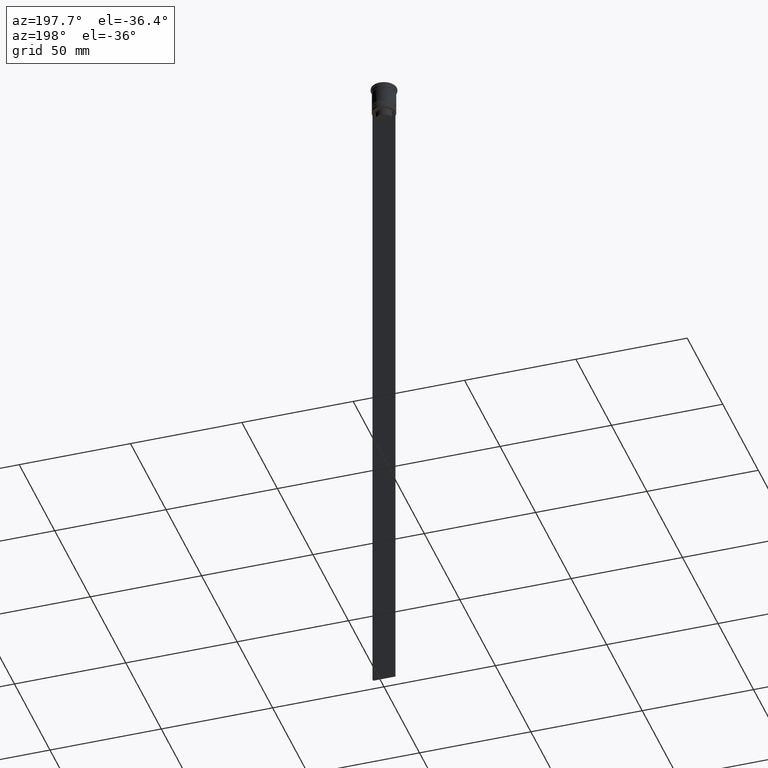
[diagram: clean part render]
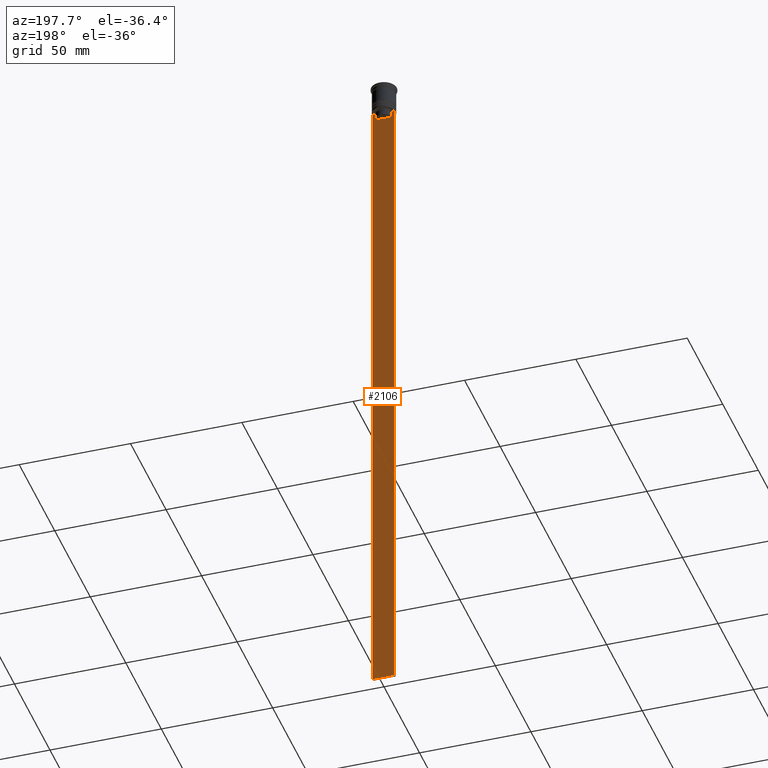
[diagram: same view with one face highlighted and labeled with its STEP entity id]
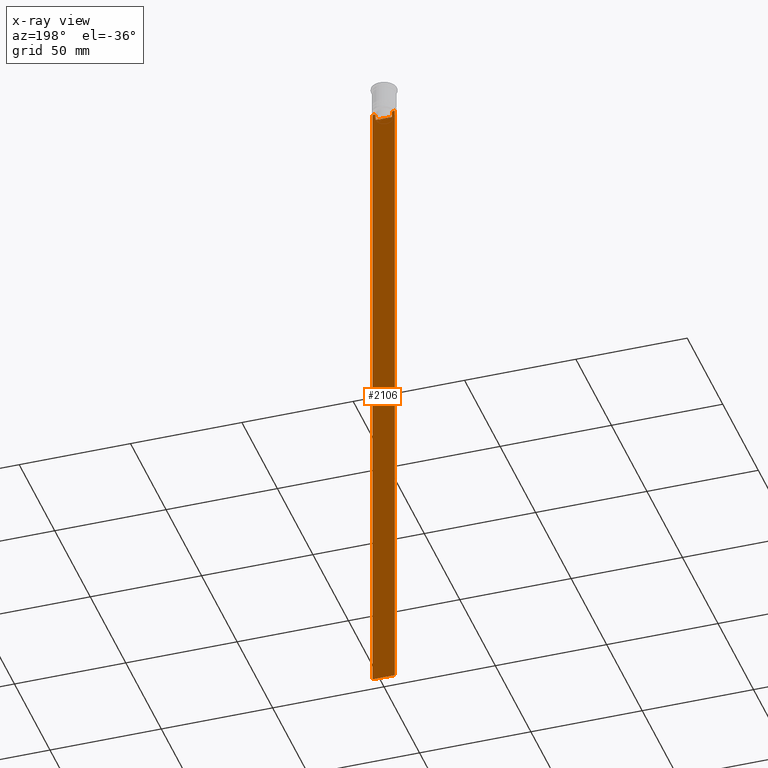
[diagram: x-ray of the same camera — body ghosted, the highlighted face saturated]
A machine part, auxiliary view. The second image highlights one B-rep face of the part: STEP entity #2106.
The next image is the same camera in x-ray: the body ghosted, the highlighted face saturated — about 0% of this face is hidden behind the body in this view.
In plain terms, the highlighted planar face has unit normal (0, -1, -0).
Its self-contained STEP definition (entity closure, byte-faithful):
#5 = LINE ( 'NONE', #807, #1112 ) ;
#7 = EDGE_CURVE ( 'NONE', #1400, #1857, #1356, .T. ) ;
#39 = DIRECTION ( 'NONE',  ( 0.000000000000000000, 0.000000000000000000, -1.000000000000000000 ) ) ;
#48 = EDGE_CURVE ( 'NONE', #1862, #1911, #707, .T. ) ;
#90 = CARTESIAN_POINT ( 'NONE',  ( 3.615591237958188486, 0.4999999999999991673, -15.50000000000000000 ) ) ;
#232 = CARTESIAN_POINT ( 'NONE',  ( -4.999999999999999112, 0.4999999999999991673, -312.5000000000000000 ) ) ;
#255 = CARTESIAN_POINT ( 'NONE',  ( -4.119769411022908834, 0.4999999999999991673, -12.50000000000000000 ) ) ;
#263 = CARTESIAN_POINT ( 'NONE',  ( 3.783746406711540722, 0.4999999999999991673, -12.83343003979123509 ) ) ;
#266 = CARTESIAN_POINT ( 'NONE',  ( -3.615591237958188042, 0.4999999999999991673, -13.00000000000000178 ) ) ;
#281 = ORIENTED_EDGE ( 'NONE', *, *, #1349, .T. ) ;
#283 = VECTOR ( 'NONE', #799, 1000.000000000000000 ) ;
#320 = AXIS2_PLACEMENT_3D ( 'NONE', #2013, #944, #39 ) ;
#428 = CARTESIAN_POINT ( 'NONE',  ( 5.000000000000000000, 0.4999999999999991673, -12.50000000000000000 ) ) ;
#451 = CARTESIAN_POINT ( 'NONE',  ( -4.119769411022908834, 0.4999999999999991673, -12.50000000000000000 ) ) ;
#455 = EDGE_CURVE ( 'NONE', #2285, #1400, #1710, .T. ) ;
#470 = EDGE_CURVE ( 'NONE', #1945, #2042, #5, .T. ) ;
#508 = B_SPLINE_CURVE_WITH_KNOTS ( 'NONE', 3,
 ( #702, #263, #1717, #678 ),
 .UNSPECIFIED., .F., .F.,
 ( 4, 4 ),
 ( 0.01745179617248911533, 0.01816207215777259493 ),
 .UNSPECIFIED. ) ;
#533 = CARTESIAN_POINT ( 'NONE',  ( -4.999999999999999112, 0.4999999999999991673, -2.450124378879110054 ) ) ;
#562 = CARTESIAN_POINT ( 'NONE',  ( 5.000000000000000000, 0.4999999999999991673, -312.5000000000000000 ) ) ;
#579 = DIRECTION ( 'NONE',  ( 0.000000000000000000, 0.000000000000000000, -1.000000000000000000 ) ) ;
#625 = VECTOR ( 'NONE', #579, 1000.000000000000000 ) ;
#668 = DIRECTION ( 'NONE',  ( -0.000000000000000000, -0.000000000000000000, 1.000000000000000000 ) ) ;
#678 = CARTESIAN_POINT ( 'NONE',  ( 4.119769411022908834, 0.4999999999999991673, -12.50000000000000000 ) ) ;
#690 = DIRECTION ( 'NONE',  ( 1.000000000000000000, 0.000000000000000000, 0.000000000000000000 ) ) ;
#696 = EDGE_CURVE ( 'NONE', #2042, #2185, #1599, .T. ) ;
#702 = CARTESIAN_POINT ( 'NONE',  ( 3.615591237958188042, 0.4999999999999991673, -13.00000000000000178 ) ) ;
#707 = LINE ( 'NONE', #1058, #1832 ) ;
#711 = CARTESIAN_POINT ( 'NONE',  ( 3.615591237958188042, 0.4999999999999991673, -13.00000000000000178 ) ) ;
#799 = DIRECTION ( 'NONE',  ( 1.000000000000000000, 0.000000000000000000, 0.000000000000000000 ) ) ;
#807 = CARTESIAN_POINT ( 'NONE',  ( 5.000000000000000000, 0.4999999999999991673, -2.450124378879110054 ) ) ;
#833 = DIRECTION ( 'NONE',  ( 1.000000000000000000, 0.000000000000000000, 0.000000000000000000 ) ) ;
#878 = EDGE_CURVE ( 'NONE', #2285, #2185, #1835, .T. ) ;
#880 = LINE ( 'NONE', #1056, #1044 ) ;
#896 = VECTOR ( 'NONE', #1244, 1000.000000000000000 ) ;
#904 = VECTOR ( 'NONE', #833, 1000.000000000000000 ) ;
#927 = ORIENTED_EDGE ( 'NONE', *, *, #1087, .T. ) ;
#944 = DIRECTION ( 'NONE',  ( 0.000000000000000000, -1.000000000000000000, -0.000000000000000000 ) ) ;
#964 = LINE ( 'NONE', #1666, #625 ) ;
#973 = ORIENTED_EDGE ( 'NONE', *, *, #48, .T. ) ;
#991 = CARTESIAN_POINT ( 'NONE',  ( -3.615591237958188486, 0.4999999999999991673, -15.50000000000000000 ) ) ;
#1019 = VERTEX_POINT ( 'NONE', #1479 ) ;
#1044 = VECTOR ( 'NONE', #668, 1000.000000000000000 ) ;
#1051 = CARTESIAN_POINT ( 'NONE',  ( 5.000000000000000000, 0.4999999999999991673, -312.5000000000000000 ) ) ;
#1056 = CARTESIAN_POINT ( 'NONE',  ( 3.615591237958188042, 0.4999999999999991673, 0.000000000000000000 ) ) ;
#1058 = CARTESIAN_POINT ( 'NONE',  ( 0.000000000000000000, 0.4999999999999991673, -15.50000000000000000 ) ) ;
#1087 = EDGE_CURVE ( 'NONE', #1911, #1995, #880, .T. ) ;
#1112 = VECTOR ( 'NONE', #1511, 1000.000000000000000 ) ;
#1149 = CARTESIAN_POINT ( 'NONE',  ( -3.615591237958188042, 0.4999999999999991673, -13.00000000000000178 ) ) ;
#1166 = CARTESIAN_POINT ( 'NONE',  ( -3.783746449387932920, 0.4999999999999991673, -12.83342999751715752 ) ) ;
#1236 = ORIENTED_EDGE ( 'NONE', *, *, #7, .T. ) ;
#1244 = DIRECTION ( 'NONE',  ( 0.000000000000000000, 0.000000000000000000, -1.000000000000000000 ) ) ;
#1294 = PLANE ( 'NONE',  #320 ) ;
#1332 = LINE ( 'NONE', #428, #904 ) ;
#1349 = EDGE_CURVE ( 'NONE', #1857, #1862, #964, .T. ) ;
#1356 = B_SPLINE_CURVE_WITH_KNOTS ( 'NONE', 3,
 ( #451, #1868, #1166, #266 ),
 .UNSPECIFIED., .F., .F.,
 ( 4, 4 ),
 ( 0.007067514914986626831, 0.007777582239375527978 ),
 .UNSPECIFIED. ) ;
#1400 = VERTEX_POINT ( 'NONE', #255 ) ;
#1479 = CARTESIAN_POINT ( 'NONE',  ( 4.119769411022908834, 0.4999999999999991673, -12.50000000000000000 ) ) ;
#1511 = DIRECTION ( 'NONE',  ( 0.000000000000000000, 0.000000000000000000, -1.000000000000000000 ) ) ;
#1599 = LINE ( 'NONE', #1051, #2292 ) ;
#1666 = CARTESIAN_POINT ( 'NONE',  ( -3.615591237958188042, 0.4999999999999991673, 0.000000000000000000 ) ) ;
#1710 = LINE ( 'NONE', #1860, #283 ) ;
#1714 = ORIENTED_EDGE ( 'NONE', *, *, #696, .T. ) ;
#1717 = CARTESIAN_POINT ( 'NONE',  ( 3.951794168112527927, 0.4999999999999991673, -12.66675163073525923 ) ) ;
#1745 = CARTESIAN_POINT ( 'NONE',  ( -4.999999999999999112, 0.4999999999999993339, -12.50000000000000000 ) ) ;
#1832 = VECTOR ( 'NONE', #690, 1000.000000000000000 ) ;
#1835 = LINE ( 'NONE', #533, #896 ) ;
#1857 = VERTEX_POINT ( 'NONE', #1149 ) ;
#1860 = CARTESIAN_POINT ( 'NONE',  ( 5.000000000000000000, 0.4999999999999991673, -12.50000000000000000 ) ) ;
#1862 = VERTEX_POINT ( 'NONE', #991 ) ;
#1868 = CARTESIAN_POINT ( 'NONE',  ( -3.951794205566887985, 0.4999999999999991673, -12.66675159355373737 ) ) ;
#1904 = ORIENTED_EDGE ( 'NONE', *, *, #455, .T. ) ;
#1906 = ORIENTED_EDGE ( 'NONE', *, *, #878, .F. ) ;
#1911 = VERTEX_POINT ( 'NONE', #90 ) ;
#1945 = VERTEX_POINT ( 'NONE', #1962 ) ;
#1962 = CARTESIAN_POINT ( 'NONE',  ( 5.000000000000000000, 0.4999999999999991673, -12.50000000000000000 ) ) ;
#1971 = EDGE_CURVE ( 'NONE', #1995, #1019, #508, .T. ) ;
#1995 = VERTEX_POINT ( 'NONE', #711 ) ;
#2013 = CARTESIAN_POINT ( 'NONE',  ( 5.000000000000000000, 0.4999999999999991673, -2.450124378879110054 ) ) ;
#2014 = ORIENTED_EDGE ( 'NONE', *, *, #2164, .T. ) ;
#2042 = VERTEX_POINT ( 'NONE', #562 ) ;
#2086 = ORIENTED_EDGE ( 'NONE', *, *, #1971, .T. ) ;
#2106 = ADVANCED_FACE ( 'NONE', ( #2187 ), #1294, .F. ) ;
#2164 = EDGE_CURVE ( 'NONE', #1019, #1945, #1332, .T. ) ;
#2185 = VERTEX_POINT ( 'NONE', #232 ) ;
#2187 = FACE_OUTER_BOUND ( 'NONE', #2245, .T. ) ;
#2245 = EDGE_LOOP ( 'NONE', ( #1904, #1236, #281, #973, #927, #2086, #2014, #2307, #1714, #1906 ) ) ;
#2285 = VERTEX_POINT ( 'NONE', #1745 ) ;
#2292 = VECTOR ( 'NONE', #2294, 1000.000000000000000 ) ;
#2294 = DIRECTION ( 'NONE',  ( -1.000000000000000000, 0.000000000000000000, 0.000000000000000000 ) ) ;
#2307 = ORIENTED_EDGE ( 'NONE', *, *, #470, .T. ) ;